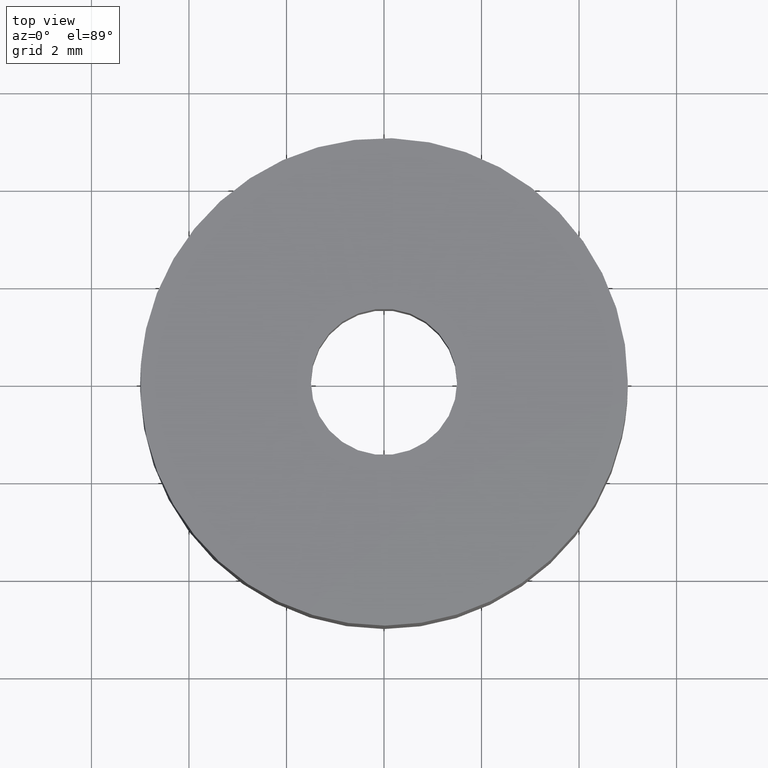
[diagram: clean part render]
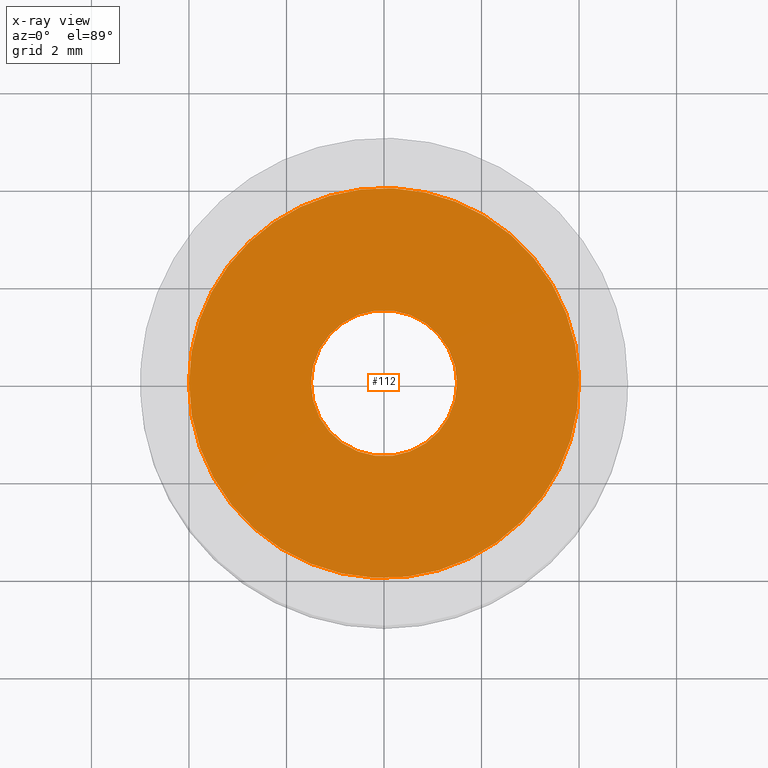
[diagram: x-ray — body ghosted, one internal face saturated and labeled with its STEP entity id]
A machine part, top view, then the same camera in x-ray: the body is ghosted and one INTERNAL B-rep face — a face not visible from any outside direction — is saturated and labeled: STEP entity #112.
In plain terms, the highlighted planar face has unit normal (0, 0, -1).
Its self-contained STEP definition (entity closure, byte-faithful):
#112=ADVANCED_FACE('',(#133,#134),#132,.F.);
#132=PLANE('',#341);
#133=FACE_OUTER_BOUND('',#342,.T.);
#134=FACE_BOUND('',#343,.T.);
#338=CARTESIAN_POINT('',(9.20000000000E+000,-8.31384387633E+000,3.50000000000E+000));
#339=DIRECTION('',(0.00000000000E+000,0.00000000000E+000,-1.00000000000E+000));
#340=DIRECTION('',(-1.00000000000E+000,0.00000000000E+000,0.00000000000E+000));
#341=AXIS2_PLACEMENT_3D('',#338,#339,#340);
#342=EDGE_LOOP('',(#486,#487,#488));
#343=EDGE_LOOP('',(#489,#490,#491));
#486=ORIENTED_EDGE('',*,*,#602,.F.);
#487=ORIENTED_EDGE('',*,*,#603,.F.);
#488=ORIENTED_EDGE('',*,*,#604,.F.);
#489=ORIENTED_EDGE('',*,*,#605,.T.);
#490=ORIENTED_EDGE('',*,*,#606,.T.);
#491=ORIENTED_EDGE('',*,*,#607,.T.);
#602=EDGE_CURVE('',#660,#661,#662,.T.);
#603=EDGE_CURVE('',#668,#660,#669,.T.);
#604=EDGE_CURVE('',#661,#668,#675,.T.);
#605=EDGE_CURVE('',#681,#682,#683,.T.);
#606=EDGE_CURVE('',#682,#689,#690,.T.);
#607=EDGE_CURVE('',#689,#681,#696,.T.);
#660=VERTEX_POINT('',#1052);
#661=VERTEX_POINT('',#1053);
#662=CIRCLE('',#1057,4.00000000000E+000);
#668=VERTEX_POINT('',#1058);
#669=CIRCLE('',#1062,4.00000000000E+000);
#675=CIRCLE('',#1066,4.00000000000E+000);
#681=VERTEX_POINT('',#1067);
#682=VERTEX_POINT('',#1068);
#683=CIRCLE('',#1072,1.50000000000E+000);
#689=VERTEX_POINT('',#1073);
#690=CIRCLE('',#1077,1.50000000000E+000);
#696=CIRCLE('',#1081,1.50000000000E+000);
#1052=CARTESIAN_POINT('',(4.72136900146E-001,-3.97203811003E+000,3.50000000000E+000));
#1053=CARTESIAN_POINT('',(-4.00000000000E+000,1.11022302463E-016,3.50000000000E+000));
#1054=CARTESIAN_POINT('',(2.52020626590E-013,1.14575016141E-013,3.50000000000E+000));
#1055=DIRECTION('',(-2.55910307529E-015,-7.51402883028E-016,-1.00000000000E+000));
#1056=DIRECTION('',(-1.00000000000E+000,-2.82551759767E-014,2.55910307529E-015));
#1057=AXIS2_PLACEMENT_3D('',#1054,#1055,#1056);
#1058=CARTESIAN_POINT('',(-4.72823440180E-001,3.97195644417E+000,3.50000000000E+000));
#1059=CARTESIAN_POINT('',(2.52020626590E-013,1.14575016141E-013,3.50000000000E+000));
#1060=DIRECTION('',(-2.55910307529E-015,-7.51402883028E-016,-1.00000000000E+000));
#1061=DIRECTION('',(-1.00000000000E+000,-2.82551759767E-014,2.55910307529E-015));
#1062=AXIS2_PLACEMENT_3D('',#1059,#1060,#1061);
#1063=CARTESIAN_POINT('',(2.52020626590E-013,1.14575016141E-013,3.50000000000E+000));
#1064=DIRECTION('',(-2.55910307529E-015,-7.51402883028E-016,-1.00000000000E+000));
#1065=DIRECTION('',(-1.00000000000E+000,-2.82551759767E-014,2.55910307529E-015));
#1066=AXIS2_PLACEMENT_3D('',#1063,#1064,#1065);
#1067=CARTESIAN_POINT('',(-1.50000000000E+000,-4.05735558466E-016,3.50000000000E+000));
#1068=CARTESIAN_POINT('',(-1.77308843490E-001,1.48948366020E+000,3.50000000000E+000));
#1069=CARTESIAN_POINT('',(1.50068846239E-012,-2.33923991289E-013,3.50000000000E+000));
#1070=DIRECTION('',(-8.88178419701E-016,4.64840746246E-032,-1.00000000000E+000));
#1071=DIRECTION('',(-1.00000000000E+000,1.55801297789E-013,8.88178419701E-016));
#1072=AXIS2_PLACEMENT_3D('',#1069,#1070,#1071);
#1073=CARTESIAN_POINT('',(1.77050807278E-001,-1.48951435429E+000,3.50000000000E+000));
#1074=CARTESIAN_POINT('',(1.50068846239E-012,-2.33923991289E-013,3.50000000000E+000));
#1075=DIRECTION('',(-8.88178419701E-016,4.64840746246E-032,-1.00000000000E+000));
#1076=DIRECTION('',(-1.00000000000E+000,1.55801297789E-013,8.88178419701E-016));
#1077=AXIS2_PLACEMENT_3D('',#1074,#1075,#1076);
#1078=CARTESIAN_POINT('',(1.50068846239E-012,-2.33923991289E-013,3.50000000000E+000));
#1079=DIRECTION('',(-8.88178419701E-016,4.64840746246E-032,-1.00000000000E+000));
#1080=DIRECTION('',(-1.00000000000E+000,1.55801297789E-013,8.88178419701E-016));
#1081=AXIS2_PLACEMENT_3D('',#1078,#1079,#1080);